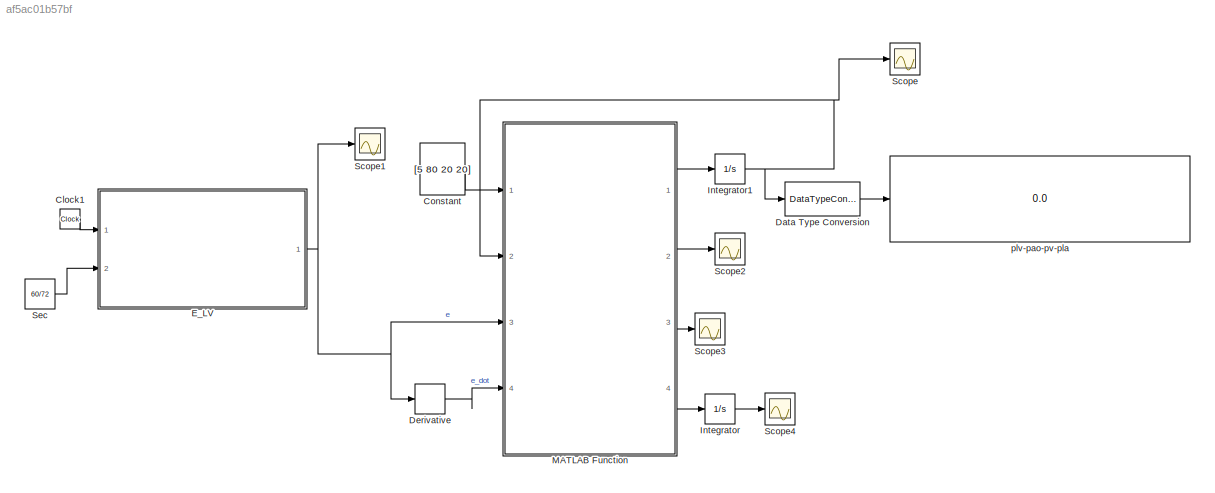
MODEL slx_af5ac01b57bf
KIND model
CONFIG AbsTol = auto
CONFIG EnableMultiTasking = off
CONFIG FixedStep = 1e-4
CONFIG MaxStep = auto
CONFIG MinStep = auto
CONFIG RelTol = 1e-3
CONFIG SampleTimeConstraint = Unconstrained
CONFIG Solver = FixedStepAuto
CONFIG SolverName = FixedStepAuto
CONFIG StartTime = 0.0
CONFIG StopTime = 1
BLOCK [Clock] Clock1
BLOCK [Constant] Constant
  Value = [5 80 20 20]
BLOCK [DataTypeConversion] Data Type Conversion
  OutDataTypeStr = int64
  RndMeth = Round
  SaturateOnIntegerOverflow = off
BLOCK [Derivative] Derivative
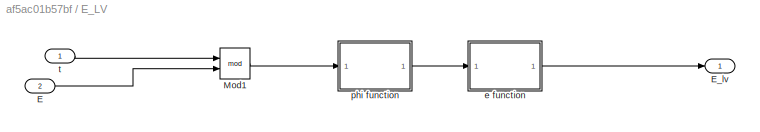
BLOCK [SubSystem] E_LV
  Ports = [2, 1]
  RequestExecContextInheritance = off
BLOCK [Inport] E_LV/E
  IconDisplay = Port number
  Port = 2
BLOCK [Outport] E_LV/E_lv
  IconDisplay = Port number
BLOCK [Math] E_LV/Mod1
  Operator = mod
  Ports = [2, 1]
  SignedPower = off
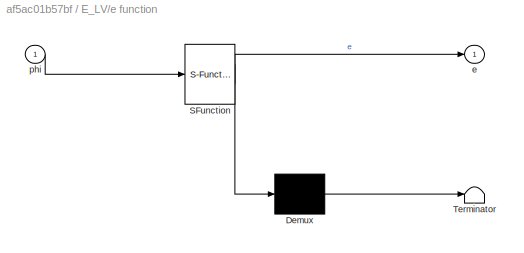
BLOCK [SubSystem] E_LV/e function
  ErrorFcn = Stateflow.Translate.translate
  PermitHierarchicalResolution = ExplicitOnly
  Ports = [1, 1]
  RequestExecContextInheritance = off
  SFBlockType = MATLAB Function
  TreatAsAtomicUnit = on
BLOCK [Demux] E_LV/e function/ Demux 
  Outputs = 1
  Ports = [1, 1]
BLOCK [S-Function] E_LV/e function/ SFunction 
  EnableBusSupport = on
  FunctionName = sf_sfun
  PortCounts = [1 2]
  Ports = [1, 2]
  SFcnIsStateOwnerBlock = off
  SFunctionDeploymentMode = off
  Tag = Stateflow S-Function 3
BLOCK [Terminator] E_LV/e function/ Terminator 
BLOCK [Outport] E_LV/e function/e
  IconDisplay = Port number
BLOCK [Inport] E_LV/e function/phi
  IconDisplay = Port number
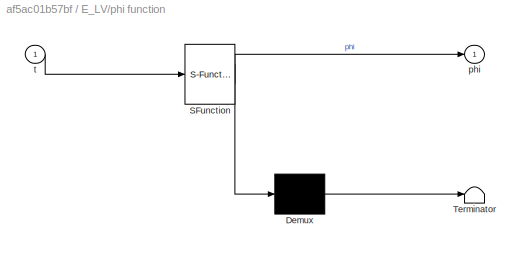
BLOCK [SubSystem] E_LV/phi function
  ErrorFcn = Stateflow.Translate.translate
  PermitHierarchicalResolution = ExplicitOnly
  Ports = [1, 1]
  RequestExecContextInheritance = off
  SFBlockType = MATLAB Function
  TreatAsAtomicUnit = on
BLOCK [Demux] E_LV/phi function/ Demux 
  Outputs = 1
  Ports = [1, 1]
BLOCK [S-Function] E_LV/phi function/ SFunction 
  EnableBusSupport = on
  FunctionName = sf_sfun
  PortCounts = [1 2]
  Ports = [1, 2]
  SFcnIsStateOwnerBlock = off
  SFunctionDeploymentMode = off
  Tag = Stateflow S-Function 1
BLOCK [Terminator] E_LV/phi function/ Terminator 
BLOCK [Outport] E_LV/phi function/phi
  IconDisplay = Port number
BLOCK [Inport] E_LV/phi function/t
  IconDisplay = Port number
BLOCK [Inport] E_LV/t
  IconDisplay = Port number
BLOCK [Integrator] Integrator
  Ports = [1, 1]
BLOCK [Integrator] Integrator1
  Ports = [1, 1]
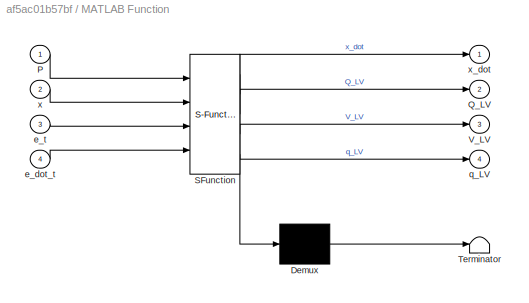
BLOCK [SubSystem] MATLAB Function
  ErrorFcn = Stateflow.Translate.translate
  PermitHierarchicalResolution = ExplicitOnly
  Ports = [4, 4]
  RequestExecContextInheritance = off
  SFBlockType = MATLAB Function
  TreatAsAtomicUnit = on
BLOCK [Demux] MATLAB Function/ Demux 
  Outputs = 1
  Ports = [1, 1]
BLOCK [S-Function] MATLAB Function/ SFunction 
  EnableBusSupport = on
  FunctionName = sf_sfun
  PortCounts = [4 5]
  Ports = [4, 5]
  SFcnIsStateOwnerBlock = off
  SFunctionDeploymentMode = off
  Tag = Stateflow S-Function 2
BLOCK [Terminator] MATLAB Function/ Terminator 
BLOCK [Inport] MATLAB Function/P
  IconDisplay = Port number
BLOCK [Outport] MATLAB Function/Q_LV
  IconDisplay = Port number
  Port = 2
BLOCK [Outport] MATLAB Function/V_LV
  IconDisplay = Port number
  Port = 3
BLOCK [Inport] MATLAB Function/e_dot_t
  IconDisplay = Port number
  Port = 4
BLOCK [Inport] MATLAB Function/e_t
  IconDisplay = Port number
  Port = 3
BLOCK [Outport] MATLAB Function/q_LV
  IconDisplay = Port number
  Port = 4
BLOCK [Inport] MATLAB Function/x
  IconDisplay = Port number
  Port = 2
BLOCK [Outport] MATLAB Function/x_dot
  IconDisplay = Port number
BLOCK [Scope] Scope
  Floating = off
  NumInputPorts = 1
  Ports = [1]
  ScopeSpecificationString = Simulink.scopes.TimeScopeBlockCfg('CurrentConfiguration', extmgr.ConfigurationSet(extmgr.Configuration('Core','General UI',true),extmgr.Configuration('Core','Source UI',true),extmgr.Configuration('Sources','WiredSimulink',true),extmgr.Configuration('Visuals','Time Domain',true,'SerializedDisplays',{struct('MinYLimReal','-22738.55605','MaxYLimReal','2773.24083','YLabelReal','','MinYLimMag','   0.00...<+1457ch>
BLOCK [Scope] Scope1
  Floating = off
  NumInputPorts = 1
  Ports = [1]
  ScopeSpecificationString = Simulink.scopes.TimeScopeBlockCfg('CurrentConfiguration', extmgr.ConfigurationSet(extmgr.Configuration('Core','General UI',true),extmgr.Configuration('Core','Source UI',true),extmgr.Configuration('Sources','WiredSimulink',true,'DataLoggingVariableName','ScopeData1'),extmgr.Configuration('Visuals','Time Domain',true,'SerializedDisplays',{struct('MinYLimReal','-3.46965','MaxYLimReal','3.08538','YLab...<+1387ch>
BLOCK [Scope] Scope2
  Floating = off
  NumInputPorts = 1
  Ports = [1]
  ScopeSpecificationString = Simulink.scopes.TimeScopeBlockCfg('CurrentConfiguration', extmgr.ConfigurationSet(extmgr.Configuration('Core','General UI',true),extmgr.Configuration('Core','Source UI',true),extmgr.Configuration('Sources','WiredSimulink',true,'DataLoggingVariableName','ScopeData2'),extmgr.Configuration('Visuals','Time Domain',true,'SerializedDisplays',{struct('MinYLimReal','-0.21585','MaxYLimReal','0.18852','YLab...<+1398ch>
BLOCK [Scope] Scope3
  Floating = off
  NumInputPorts = 1
  Ports = [1]
  ScopeSpecificationString = Simulink.scopes.TimeScopeBlockCfg('CurrentConfiguration', extmgr.ConfigurationSet(extmgr.Configuration('Core','General UI',true),extmgr.Configuration('Core','Source UI',true),extmgr.Configuration('Sources','WiredSimulink',true,'DataLoggingVariableName','ScopeData3'),extmgr.Configuration('Visuals','Time Domain',true,'SerializedDisplays',{struct('MinYLimReal','-257521.77205','MaxYLimReal','1328946.3...<+1469ch>
BLOCK [Scope] Scope4
  Floating = off
  NumInputPorts = 1
  Ports = [1]
  ScopeSpecificationString = Simulink.scopes.TimeScopeBlockCfg('CurrentConfiguration', extmgr.ConfigurationSet(extmgr.Configuration('Core','General UI',true),extmgr.Configuration('Core','Source UI',true),extmgr.Configuration('Sources','WiredSimulink',true,'DataLoggingVariableName','ScopeData4'),extmgr.Configuration('Visuals','Time Domain',true,'SerializedDisplays',{struct('MinYLimReal','-2.53802','MaxYLimReal','22.84215','YLa...<+1402ch>
BLOCK [Constant] Sec
  Value = 60/72
BLOCK [Display] plv-pao-pv-pla
  Decimation = 1
  Ports = [1]
LINE Clock1:1 -> E_LV:1
LINE Constant:1 -> MATLAB Function:1
LINE Data Type Conversion:1 -> plv-pao-pv-pla:1
LINE Derivative:1 -> MATLAB Function:4
LINE E_LV/E:1 -> E_LV/Mod1:2
LINE E_LV/Mod1:1 -> E_LV/phi function:1
LINE E_LV/e function:1 -> E_LV/E_lv:1
LINE E_LV/phi function:1 -> E_LV/e function:1
LINE E_LV/t:1 -> E_LV/Mod1:1
NET E_LV:1 -> Derivative:1, MATLAB Function:3, Scope1:1
NET Integrator1:1 -> Data Type Conversion:1, MATLAB Function:2, Scope:1
LINE Integrator:1 -> Scope4:1
LINE MATLAB Function:1 -> Integrator1:1
LINE MATLAB Function:2 -> Scope2:1
LINE MATLAB Function:3 -> Scope3:1
LINE MATLAB Function:4 -> Integrator:1
LINE Sec:1 -> E_LV:2
note: NET lines group one-source signal fan-out (src -> all destinations, sorted); 1:1 wires keep LINE
CHART E_LV/phi function states=1 transitions=1
  STATE_LABEL 'eML_blk_kernel()'
  STATE_LABEL 'SCRIPT:\nfunction phi = fcn(t)\nphi = 0.9*sin(pi/0.4*t)-0.25*sin(2*pi/0.4*t);\nend'
CHART MATLAB Function states=1 transitions=1
  STATE_LABEL 'eML_blk_kernel()'
  STATE_LABEL 'SCRIPT:\nfunction [x_dot,Q_LV, V_LV, q_LV] = cardiovascular_model(P,x,e_t,e_dot_t)\nQ = zeros(2,1);\np1 = 0; p2 = 0;\nG1= 14.81; G2=1.46; G3=266.6; G4=20;\nE_1=1/0.22;  E_2=1/20; E_3=1/1.46; E_4=1/200;\nP1=5; P2=80; P3=20; P4=20;\nif ((P4 - P1) > 0)\n    p1 = P4 - P1;\nend\n    if ((P1 - P2)> 0)\n        p2 = P1 - P2;\n    end\n    Q = [G3*p1; G2*p2];\n    phase = 0;\n    if Q(2,1) > 0 && Q(1,1) == 0\n        pha...<+423ch>'
CHART E_LV/e function states=1 transitions=1
  STATE_LABEL 'eML_blk_kernel()'
  STATE_LABEL 'SCRIPT:\nfunction e = fcn(phi)\ne = 0.043*(1-phi)+2.83*phi;\nend'
